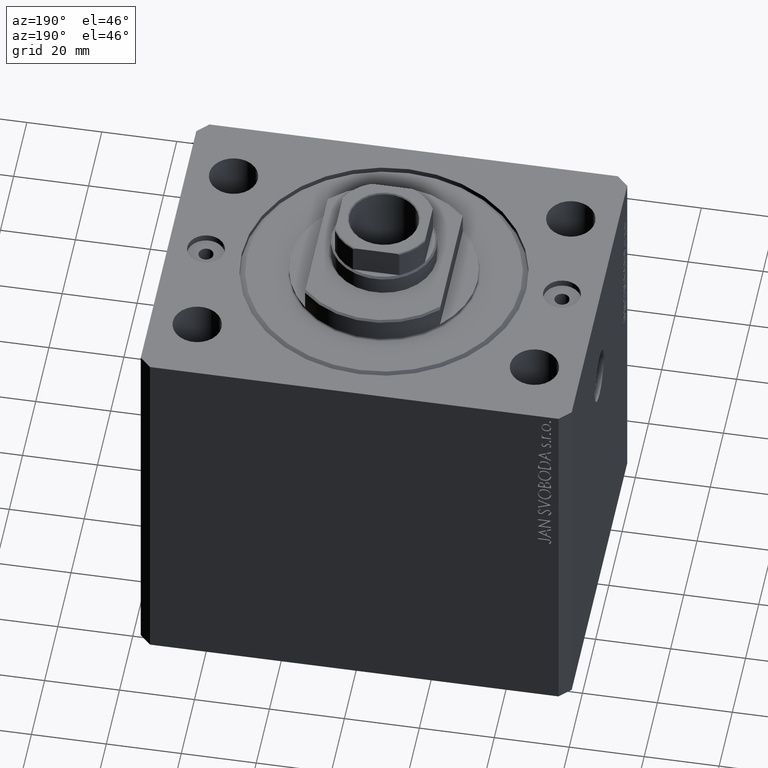
[diagram: clean part render]
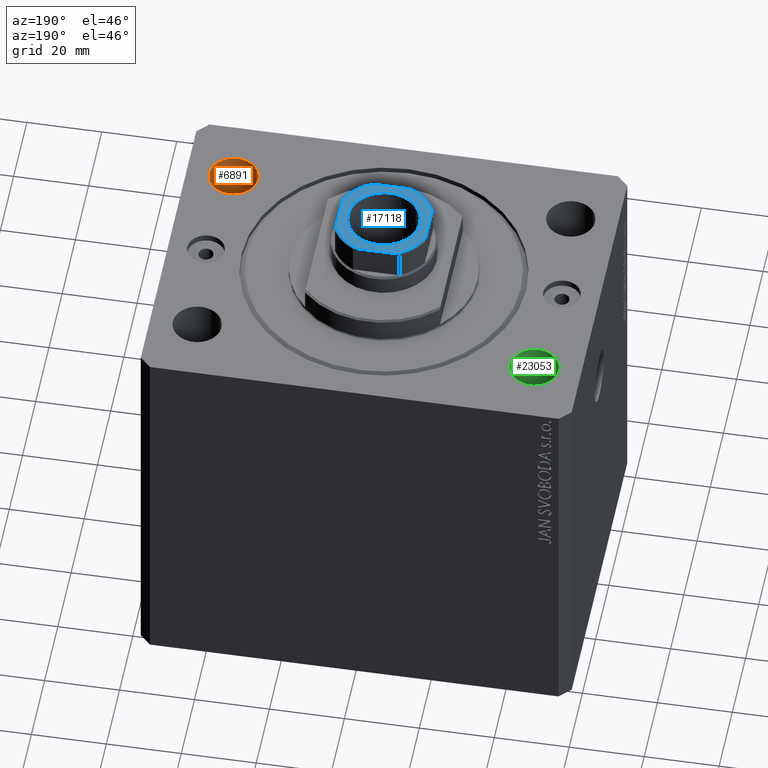
[diagram: same view with three faces highlighted in distinct colors, each labeled with its STEP entity id]
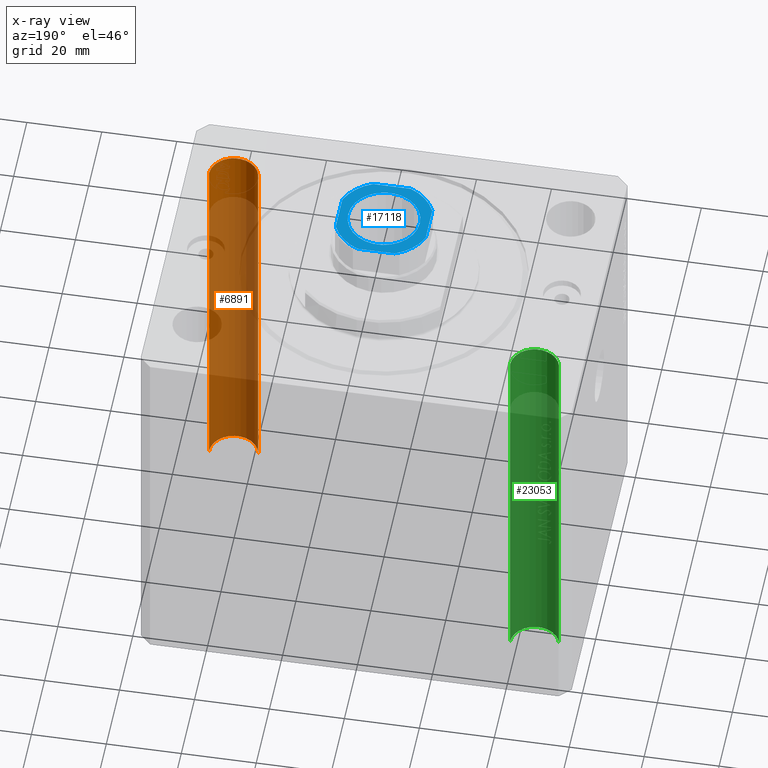
[diagram: x-ray of the same camera — body ghosted, the three highlighted faces saturated]
A machine part, auxiliary view with three faces highlighted in distinct colors.
The next image is the same camera in x-ray (body ghosted, the three faces saturated) — at least one of them is partly hidden behind the body in this view.
Their STEP definitions:

[orange] entity #6891 — the highlighted cylindrical surface (edge-blend (fillet) strip) has radius 6.5 mm, axis along (0, 0, 1).
#1735 = DIRECTION ( 'NONE',  ( -0.000000000000000000, -0.000000000000000000, -1.000000000000000000 ) ) ;
#2491 = ORIENTED_EDGE ( 'NONE', *, *, #19653, .T. ) ;
#3315 = ORIENTED_EDGE ( 'NONE', *, *, #12186, .T. ) ;
#3841 = AXIS2_PLACEMENT_3D ( 'NONE', #9305, #13336, #16278 ) ;
#5084 = CIRCLE ( 'NONE', #18729, 6.499999999999999112 ) ;
#5289 = LINE ( 'NONE', #22153, #10434 ) ;
#5556 = LINE ( 'NONE', #29150, #37729 ) ;
#6891 = ADVANCED_FACE ( 'NONE', ( #40124 ), #23673, .F. ) ;
#7247 = VERTEX_POINT ( 'NONE', #21586 ) ;
#9305 = CARTESIAN_POINT ( 'NONE',  ( 44.99999999999998579, -27.50000000000000355, -123.3847763108502278 ) ) ;
#10345 = CARTESIAN_POINT ( 'NONE',  ( 38.49999999999998579, -27.50000000000000355, 0.000000000000000000 ) ) ;
#10434 = VECTOR ( 'NONE', #25963, 1000.000000000000000 ) ;
#10458 = CARTESIAN_POINT ( 'NONE',  ( 51.49999999999998579, -27.50000000000000355, -105.0000000000000000 ) ) ;
#10492 = VERTEX_POINT ( 'NONE', #10345 ) ;
#11172 = VERTEX_POINT ( 'NONE', #10458 ) ;
#11221 = EDGE_LOOP ( 'NONE', ( #2491, #3315, #25219, #31847 ) ) ;
#12186 = EDGE_CURVE ( 'NONE', #7247, #10492, #5289, .T. ) ;
#13336 = DIRECTION ( 'NONE',  ( -0.000000000000000000, -0.000000000000000000, 1.000000000000000000 ) ) ;
#15673 = DIRECTION ( 'NONE',  ( 1.000000000000000000, 0.000000000000000000, 0.000000000000000000 ) ) ;
#16278 = DIRECTION ( 'NONE',  ( 1.000000000000000000, 0.000000000000000000, 0.000000000000000000 ) ) ;
#16760 = EDGE_CURVE ( 'NONE', #11172, #29872, #5556, .T. ) ;
#16885 = DIRECTION ( 'NONE',  ( 1.000000000000000000, 0.000000000000000000, 0.000000000000000000 ) ) ;
#17668 = CIRCLE ( 'NONE', #23420, 6.499999999999999112 ) ;
#18729 = AXIS2_PLACEMENT_3D ( 'NONE', #23624, #44082, #16885 ) ;
#19266 = DIRECTION ( 'NONE',  ( -0.000000000000000000, -0.000000000000000000, 1.000000000000000000 ) ) ;
#19653 = EDGE_CURVE ( 'NONE', #11172, #7247, #17668, .T. ) ;
#21586 = CARTESIAN_POINT ( 'NONE',  ( 38.49999999999998579, -27.50000000000000355, -105.0000000000000000 ) ) ;
#22153 = CARTESIAN_POINT ( 'NONE',  ( 38.49999999999998579, -27.50000000000000355, -123.3847763108502278 ) ) ;
#23420 = AXIS2_PLACEMENT_3D ( 'NONE', #36136, #1735, #15673 ) ;
#23624 = CARTESIAN_POINT ( 'NONE',  ( 44.99999999999998579, -27.50000000000000355, 0.000000000000000000 ) ) ;
#23673 = CYLINDRICAL_SURFACE ( 'NONE', #3841, 6.499999999999999112 ) ;
#25219 = ORIENTED_EDGE ( 'NONE', *, *, #35999, .T. ) ;
#25963 = DIRECTION ( 'NONE',  ( -0.000000000000000000, -0.000000000000000000, 1.000000000000000000 ) ) ;
#29150 = CARTESIAN_POINT ( 'NONE',  ( 51.49999999999998579, -27.50000000000000355, -123.3847763108502278 ) ) ;
#29872 = VERTEX_POINT ( 'NONE', #36242 ) ;
#31847 = ORIENTED_EDGE ( 'NONE', *, *, #16760, .F. ) ;
#35999 = EDGE_CURVE ( 'NONE', #10492, #29872, #5084, .T. ) ;
#36136 = CARTESIAN_POINT ( 'NONE',  ( 44.99999999999998579, -27.50000000000000355, -105.0000000000000000 ) ) ;
#36242 = CARTESIAN_POINT ( 'NONE',  ( 51.49999999999998579, -27.50000000000000355, 0.000000000000000000 ) ) ;
#37729 = VECTOR ( 'NONE', #19266, 1000.000000000000000 ) ;
#40124 = FACE_OUTER_BOUND ( 'NONE', #11221, .T. ) ;
#44082 = DIRECTION ( 'NONE',  ( 0.000000000000000000, 0.000000000000000000, 1.000000000000000000 ) ) ;

[blue] entity #17118 — the highlighted planar face has unit normal (0, 0, 1).
#387 = VECTOR ( 'NONE', #25857, 1000.000000000000000 ) ;
#1086 = DIRECTION ( 'NONE',  ( 1.000000000000000000, 0.000000000000000000, 0.000000000000000000 ) ) ;
#1783 = DIRECTION ( 'NONE',  ( 1.000000000000000000, 0.000000000000000000, 0.000000000000000000 ) ) ;
#3037 = DIRECTION ( 'NONE',  ( -0.000000000000000000, 0.000000000000000000, 1.000000000000000000 ) ) ;
#4727 = ORIENTED_EDGE ( 'NONE', *, *, #28497, .T. ) ;
#5986 = DIRECTION ( 'NONE',  ( 1.000000000000000000, 0.000000000000000000, 0.000000000000000000 ) ) ;
#6456 = VERTEX_POINT ( 'NONE', #20678 ) ;
#6754 = PLANE ( 'NONE',  #14849 ) ;
#6976 = FACE_OUTER_BOUND ( 'NONE', #42165, .T. ) ;
#7267 = EDGE_CURVE ( 'NONE', #12114, #34722, #30408, .T. ) ;
#9323 = CIRCLE ( 'NONE', #11471, 13.00000000000000000 ) ;
#9744 = AXIS2_PLACEMENT_3D ( 'NONE', #10746, #18186, #1086 ) ;
#10341 = DIRECTION ( 'NONE',  ( 1.000000000000000000, 0.000000000000000000, 0.000000000000000000 ) ) ;
#10746 = CARTESIAN_POINT ( 'NONE',  ( 0.000000000000000000, 0.000000000000000000, 107.0999999999999943 ) ) ;
#10992 = ORIENTED_EDGE ( 'NONE', *, *, #13348, .T. ) ;
#11096 = CARTESIAN_POINT ( 'NONE',  ( -9.550000000000002487, 1.169537693185722755E-15, 107.0999999999999943 ) ) ;
#11422 = EDGE_CURVE ( 'NONE', #34722, #17474, #22814, .T. ) ;
#11471 = AXIS2_PLACEMENT_3D ( 'NONE', #13998, #31527, #27713 ) ;
#12114 = VERTEX_POINT ( 'NONE', #14292 ) ;
#12143 = LINE ( 'NONE', #15750, #387 ) ;
#12329 = ORIENTED_EDGE ( 'NONE', *, *, #7267, .T. ) ;
#12673 = AXIS2_PLACEMENT_3D ( 'NONE', #42770, #31758, #35582 ) ;
#12707 = EDGE_CURVE ( 'NONE', #13707, #25004, #12143, .T. ) ;
#13060 = VERTEX_POINT ( 'NONE', #11096 ) ;
#13348 = EDGE_CURVE ( 'NONE', #17474, #25547, #32691, .T. ) ;
#13707 = VERTEX_POINT ( 'NONE', #23755 ) ;
#13998 = CARTESIAN_POINT ( 'NONE',  ( 0.000000000000000000, 0.000000000000000000, 107.0999999999999943 ) ) ;
#14292 = CARTESIAN_POINT ( 'NONE',  ( 4.999999999999993783, -12.00000000000000178, 107.0999999999999943 ) ) ;
#14355 = ORIENTED_EDGE ( 'NONE', *, *, #36474, .T. ) ;
#14849 = AXIS2_PLACEMENT_3D ( 'NONE', #33528, #20261, #10341 ) ;
#14969 = AXIS2_PLACEMENT_3D ( 'NONE', #19483, #3037, #5986 ) ;
#15262 = ORIENTED_EDGE ( 'NONE', *, *, #25839, .T. ) ;
#15676 = CIRCLE ( 'NONE', #14969, 13.00000000000000000 ) ;
#15750 = CARTESIAN_POINT ( 'NONE',  ( -11.99999999999999822, 11.99999999999999822, 107.0999999999999943 ) ) ;
#16541 = VECTOR ( 'NONE', #17944, 1000.000000000000000 ) ;
#16823 = DIRECTION ( 'NONE',  ( -1.000000000000000000, -7.228014483236695816E-17, -0.000000000000000000 ) ) ;
#17118 = ADVANCED_FACE ( 'NONE', ( #37562, #6976 ), #6754, .T. ) ;
#17474 = VERTEX_POINT ( 'NONE', #38632 ) ;
#17944 = DIRECTION ( 'NONE',  ( 1.000000000000000000, 7.228014483236695816E-17, 0.000000000000000000 ) ) ;
#18186 = DIRECTION ( 'NONE',  ( -0.000000000000000000, 0.000000000000000000, 1.000000000000000000 ) ) ;
#18939 = EDGE_CURVE ( 'NONE', #13060, #6456, #29156, .T. ) ;
#19483 = CARTESIAN_POINT ( 'NONE',  ( 0.000000000000000000, 0.000000000000000000, 107.0999999999999943 ) ) ;
#19933 = CARTESIAN_POINT ( 'NONE',  ( -5.000000000000001776, 11.99999999999999822, 107.0999999999999943 ) ) ;
#19968 = CARTESIAN_POINT ( 'NONE',  ( 5.000000000000002665, 12.00000000000000000, 107.0999999999999943 ) ) ;
#20194 = LINE ( 'NONE', #33023, #26560 ) ;
#20261 = DIRECTION ( 'NONE',  ( -0.000000000000000000, 0.000000000000000000, 1.000000000000000000 ) ) ;
#20332 = ORIENTED_EDGE ( 'NONE', *, *, #11422, .T. ) ;
#20678 = CARTESIAN_POINT ( 'NONE',  ( 9.550000000000002487, 0.000000000000000000, 107.0999999999999943 ) ) ;
#21490 = AXIS2_PLACEMENT_3D ( 'NONE', #32489, #35430, #25967 ) ;
#22814 = LINE ( 'NONE', #27066, #24760 ) ;
#23755 = CARTESIAN_POINT ( 'NONE',  ( -11.99999999999999822, 5.000000000000000888, 107.0999999999999943 ) ) ;
#24760 = VECTOR ( 'NONE', #34693, 1000.000000000000000 ) ;
#25004 = VERTEX_POINT ( 'NONE', #40387 ) ;
#25547 = VERTEX_POINT ( 'NONE', #19968 ) ;
#25839 = EDGE_CURVE ( 'NONE', #31508, #13707, #15676, .T. ) ;
#25857 = DIRECTION ( 'NONE',  ( 7.228014483236695816E-17, -1.000000000000000000, 0.000000000000000000 ) ) ;
#25967 = DIRECTION ( 'NONE',  ( 1.000000000000000000, 0.000000000000000000, 0.000000000000000000 ) ) ;
#26522 = CIRCLE ( 'NONE', #21490, 9.550000000000002487 ) ;
#26559 = VERTEX_POINT ( 'NONE', #32748 ) ;
#26560 = VECTOR ( 'NONE', #16823, 1000.000000000000000 ) ;
#27066 = CARTESIAN_POINT ( 'NONE',  ( 12.00000000000000000, 12.00000000000000000, 107.0999999999999943 ) ) ;
#27528 = ORIENTED_EDGE ( 'NONE', *, *, #18939, .T. ) ;
#27713 = DIRECTION ( 'NONE',  ( 1.000000000000000000, 0.000000000000000000, 0.000000000000000000 ) ) ;
#27826 = CARTESIAN_POINT ( 'NONE',  ( -11.99999999999999645, -12.00000000000000178, 107.0999999999999943 ) ) ;
#28497 = EDGE_CURVE ( 'NONE', #6456, #13060, #26522, .T. ) ;
#29156 = CIRCLE ( 'NONE', #12673, 9.550000000000002487 ) ;
#29500 = EDGE_CURVE ( 'NONE', #25547, #31508, #20194, .T. ) ;
#29533 = CARTESIAN_POINT ( 'NONE',  ( 12.00000000000000178, -4.999999999999990230, 107.0999999999999943 ) ) ;
#29756 = EDGE_CURVE ( 'NONE', #25004, #26559, #9323, .T. ) ;
#30408 = CIRCLE ( 'NONE', #33994, 13.00000000000000000 ) ;
#31416 = LINE ( 'NONE', #27826, #16541 ) ;
#31508 = VERTEX_POINT ( 'NONE', #19933 ) ;
#31527 = DIRECTION ( 'NONE',  ( -0.000000000000000000, 0.000000000000000000, 1.000000000000000000 ) ) ;
#31758 = DIRECTION ( 'NONE',  ( 0.000000000000000000, -0.000000000000000000, -1.000000000000000000 ) ) ;
#32489 = CARTESIAN_POINT ( 'NONE',  ( 0.000000000000000000, 0.000000000000000000, 107.0999999999999943 ) ) ;
#32691 = CIRCLE ( 'NONE', #9744, 13.00000000000000000 ) ;
#32748 = CARTESIAN_POINT ( 'NONE',  ( -4.999999999999992895, -12.00000000000000178, 107.0999999999999943 ) ) ;
#33023 = CARTESIAN_POINT ( 'NONE',  ( -11.99999999999999822, 11.99999999999999822, 107.0999999999999943 ) ) ;
#33528 = CARTESIAN_POINT ( 'NONE',  ( 0.000000000000000000, 0.000000000000000000, 107.0999999999999943 ) ) ;
#33994 = AXIS2_PLACEMENT_3D ( 'NONE', #42274, #42055, #1783 ) ;
#34693 = DIRECTION ( 'NONE',  ( -1.445602896647339163E-16, 1.000000000000000000, -0.000000000000000000 ) ) ;
#34722 = VERTEX_POINT ( 'NONE', #29533 ) ;
#35430 = DIRECTION ( 'NONE',  ( 0.000000000000000000, -0.000000000000000000, -1.000000000000000000 ) ) ;
#35582 = DIRECTION ( 'NONE',  ( 1.000000000000000000, 0.000000000000000000, 0.000000000000000000 ) ) ;
#36474 = EDGE_CURVE ( 'NONE', #26559, #12114, #31416, .T. ) ;
#37562 = FACE_BOUND ( 'NONE', #38847, .T. ) ;
#38632 = CARTESIAN_POINT ( 'NONE',  ( 12.00000000000000178, 4.999999999999994671, 107.0999999999999943 ) ) ;
#38776 = ORIENTED_EDGE ( 'NONE', *, *, #29500, .T. ) ;
#38847 = EDGE_LOOP ( 'NONE', ( #4727, #27528 ) ) ;
#39886 = ORIENTED_EDGE ( 'NONE', *, *, #29756, .T. ) ;
#40343 = ORIENTED_EDGE ( 'NONE', *, *, #12707, .T. ) ;
#40387 = CARTESIAN_POINT ( 'NONE',  ( -11.99999999999999822, -5.000000000000001776, 107.0999999999999943 ) ) ;
#42055 = DIRECTION ( 'NONE',  ( -0.000000000000000000, 0.000000000000000000, 1.000000000000000000 ) ) ;
#42165 = EDGE_LOOP ( 'NONE', ( #40343, #39886, #14355, #12329, #20332, #10992, #38776, #15262 ) ) ;
#42274 = CARTESIAN_POINT ( 'NONE',  ( 0.000000000000000000, 0.000000000000000000, 107.0999999999999943 ) ) ;
#42770 = CARTESIAN_POINT ( 'NONE',  ( 0.000000000000000000, 0.000000000000000000, 107.0999999999999943 ) ) ;

[green] entity #23053 — the highlighted cylindrical surface (edge-blend (fillet) strip) has radius 6.5 mm, axis along (0, 0, 1).
#681 = CYLINDRICAL_SURFACE ( 'NONE', #17051, 6.499999999999999112 ) ;
#1687 = CIRCLE ( 'NONE', #21789, 6.499999999999999112 ) ;
#5868 = DIRECTION ( 'NONE',  ( -0.000000000000000000, -0.000000000000000000, 1.000000000000000000 ) ) ;
#7198 = CIRCLE ( 'NONE', #19449, 6.499999999999999112 ) ;
#7316 = EDGE_CURVE ( 'NONE', #42090, #33610, #1687, .T. ) ;
#8401 = EDGE_LOOP ( 'NONE', ( #12873, #30769, #12938, #18801 ) ) ;
#9235 = CARTESIAN_POINT ( 'NONE',  ( -51.50000000000000000, 27.49999999999999645, -123.3847763108502278 ) ) ;
#11255 = FACE_OUTER_BOUND ( 'NONE', #8401, .T. ) ;
#12800 = VECTOR ( 'NONE', #5868, 1000.000000000000000 ) ;
#12873 = ORIENTED_EDGE ( 'NONE', *, *, #41483, .T. ) ;
#12938 = ORIENTED_EDGE ( 'NONE', *, *, #7316, .T. ) ;
#14656 = VERTEX_POINT ( 'NONE', #32164 ) ;
#17051 = AXIS2_PLACEMENT_3D ( 'NONE', #24966, #25410, #21382 ) ;
#18801 = ORIENTED_EDGE ( 'NONE', *, *, #32383, .F. ) ;
#19449 = AXIS2_PLACEMENT_3D ( 'NONE', #21112, #25155, #28084 ) ;
#20370 = DIRECTION ( 'NONE',  ( -0.000000000000000000, -0.000000000000000000, 1.000000000000000000 ) ) ;
#21112 = CARTESIAN_POINT ( 'NONE',  ( -45.00000000000000000, 27.49999999999999645, -105.0000000000000000 ) ) ;
#21382 = DIRECTION ( 'NONE',  ( 1.000000000000000000, 0.000000000000000000, 0.000000000000000000 ) ) ;
#21789 = AXIS2_PLACEMENT_3D ( 'NONE', #26725, #40669, #40453 ) ;
#22646 = CARTESIAN_POINT ( 'NONE',  ( -38.50000000000000000, 27.49999999999999645, -105.0000000000000000 ) ) ;
#23053 = ADVANCED_FACE ( 'NONE', ( #11255 ), #681, .F. ) ;
#24183 = LINE ( 'NONE', #31140, #37404 ) ;
#24463 = EDGE_CURVE ( 'NONE', #14656, #42090, #39377, .T. ) ;
#24966 = CARTESIAN_POINT ( 'NONE',  ( -45.00000000000000000, 27.49999999999999645, -123.3847763108502278 ) ) ;
#25155 = DIRECTION ( 'NONE',  ( -0.000000000000000000, -0.000000000000000000, -1.000000000000000000 ) ) ;
#25410 = DIRECTION ( 'NONE',  ( -0.000000000000000000, -0.000000000000000000, 1.000000000000000000 ) ) ;
#26725 = CARTESIAN_POINT ( 'NONE',  ( -45.00000000000000000, 27.49999999999999645, 0.000000000000000000 ) ) ;
#27406 = CARTESIAN_POINT ( 'NONE',  ( -38.50000000000000000, 27.49999999999999645, 0.000000000000000000 ) ) ;
#28084 = DIRECTION ( 'NONE',  ( 1.000000000000000000, 0.000000000000000000, 0.000000000000000000 ) ) ;
#29021 = CARTESIAN_POINT ( 'NONE',  ( -51.50000000000000000, 27.49999999999999645, 0.000000000000000000 ) ) ;
#30769 = ORIENTED_EDGE ( 'NONE', *, *, #24463, .T. ) ;
#31140 = CARTESIAN_POINT ( 'NONE',  ( -38.50000000000000000, 27.49999999999999645, -123.3847763108502278 ) ) ;
#32164 = CARTESIAN_POINT ( 'NONE',  ( -51.50000000000000000, 27.49999999999999645, -105.0000000000000000 ) ) ;
#32383 = EDGE_CURVE ( 'NONE', #39880, #33610, #24183, .T. ) ;
#33610 = VERTEX_POINT ( 'NONE', #27406 ) ;
#37404 = VECTOR ( 'NONE', #20370, 1000.000000000000000 ) ;
#39377 = LINE ( 'NONE', #9235, #12800 ) ;
#39880 = VERTEX_POINT ( 'NONE', #22646 ) ;
#40453 = DIRECTION ( 'NONE',  ( 1.000000000000000000, 0.000000000000000000, 0.000000000000000000 ) ) ;
#40669 = DIRECTION ( 'NONE',  ( 0.000000000000000000, 0.000000000000000000, 1.000000000000000000 ) ) ;
#41483 = EDGE_CURVE ( 'NONE', #39880, #14656, #7198, .T. ) ;
#42090 = VERTEX_POINT ( 'NONE', #29021 ) ;